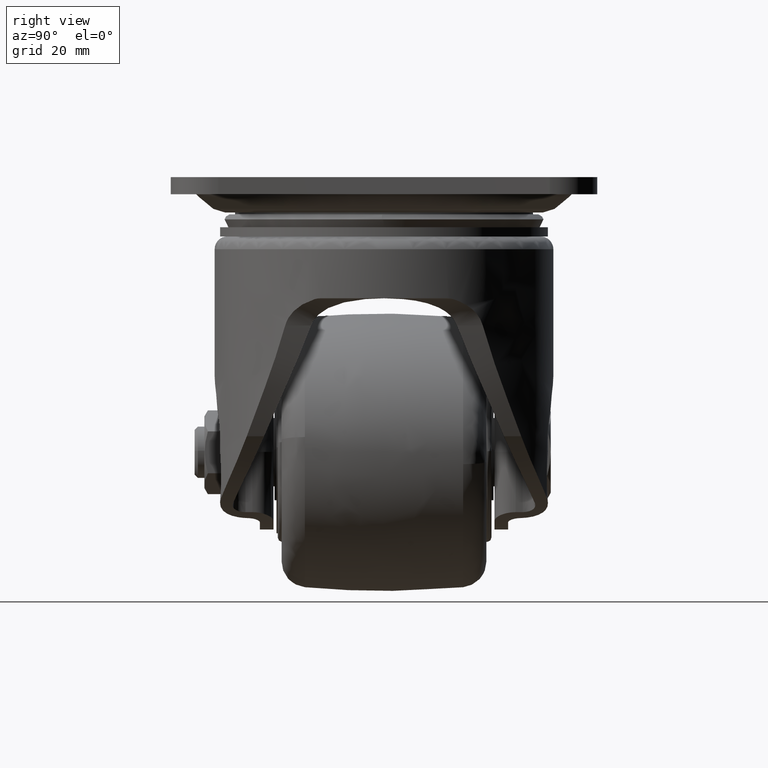
[diagram: clean part render]
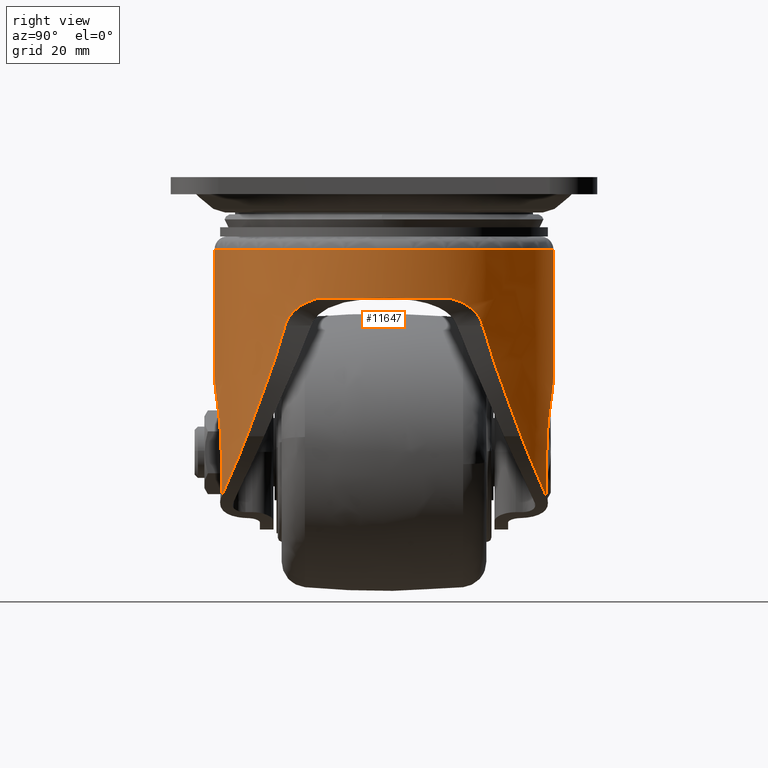
[diagram: same view with one face highlighted and labeled with its STEP entity id]
A machine part, right view. The second image highlights one B-rep face of the part: STEP entity #11647.
In plain terms, the highlighted face is a freeform B-spline surface patch.
Its self-contained STEP definition (entity closure, byte-faithful):
#7532=CARTESIAN_POINT('',(36.812221337535149,14.864217247434860,-28.399991999999902));
#7533=VERTEX_POINT('',#7532);
#7534=CARTESIAN_POINT('',(36.230004041705762,16.231811328207399,-28.586958777777699));
#7535=VERTEX_POINT('',#7534);
#7536=CARTESIAN_POINT('',(36.812221337535149,14.864217247434860,-28.399991999999902));
#7537=CARTESIAN_POINT('',(36.717984941552317,15.097601650309100,-28.399991999999902));
#7538=CARTESIAN_POINT('',(36.622156322688490,15.328530808583061,-28.412993017137421));
#7539=CARTESIAN_POINT('',(36.476396925567030,15.670756550695369,-28.456702601227541));
#7540=CARTESIAN_POINT('',(36.427476928232117,15.784131619117240,-28.475355394931540));
#7541=CARTESIAN_POINT('',(36.329094646031287,16.009272860782978,-28.522740774934469));
#7542=CARTESIAN_POINT('',(36.279629445634328,16.121044846056851,-28.551421769338170));
#7543=CARTESIAN_POINT('',(36.230004041705762,16.231811328207399,-28.586958777777699));
#7544=B_SPLINE_CURVE_WITH_KNOTS('',3,(#7536,#7537,#7538,#7539,#7540,#7541,#7542,#7543),.UNSPECIFIED.,.F.,.U.,(4,2,2,4),(0.0,0.500000000000000,0.750000000000000,1.0),.UNSPECIFIED.);
#7545=EDGE_CURVE('',#7533,#7535,#7544,.T.);
#7876=CARTESIAN_POINT('',(36.230004041705762,-16.231593665728699,-28.586958777777699));
#7877=VERTEX_POINT('',#7876);
#7878=CARTESIAN_POINT('',(36.812221337535149,-14.863999584956140,-28.399991999999902));
#7879=VERTEX_POINT('',#7878);
#7880=CARTESIAN_POINT('',(36.230004041705762,-16.231593665728699,-28.586958777777699));
#7881=CARTESIAN_POINT('',(36.279629445634342,-16.120827183578150,-28.551421769338170));
#7882=CARTESIAN_POINT('',(36.329094646031280,-16.009055198304281,-28.522740774934480));
#7883=CARTESIAN_POINT('',(36.427476928232110,-15.783913956638539,-28.475355394931551));
#7884=CARTESIAN_POINT('',(36.476396925567023,-15.670538888216660,-28.456702601227541));
#7885=CARTESIAN_POINT('',(36.622156322688483,-15.328313146104350,-28.412993017137421));
#7886=CARTESIAN_POINT('',(36.717984941552317,-15.097383987830380,-28.399991999999909));
#7887=CARTESIAN_POINT('',(36.812221337535149,-14.863999584956140,-28.399991999999902));
#7888=B_SPLINE_CURVE_WITH_KNOTS('',3,(#7880,#7881,#7882,#7883,#7884,#7885,#7886,#7887),.UNSPECIFIED.,.F.,.U.,(4,2,2,4),(0.0,0.250000000000002,0.500000000000003,1.0),.UNSPECIFIED.);
#7889=EDGE_CURVE('',#7877,#7879,#7888,.T.);
#7961=CARTESIAN_POINT('',(0.014432358037103,-39.699779714185247,-16.899992999999998));
#7962=VERTEX_POINT('',#7961);
#8028=CARTESIAN_POINT('',(0.014432358037102,-39.699779714185247,-46.660197593636099));
#8029=VERTEX_POINT('',#8028);
#8035=CARTESIAN_POINT('',(0.014432358037103,-39.699779714185247,-16.899992999999998));
#8036=CARTESIAN_POINT('',(0.014432358037102,-39.699779714185247,-46.660197593636099));
#8037=QUASI_UNIFORM_CURVE('',1,(#8035,#8036),.UNSPECIFIED.,.F.,.U.);
#8038=EDGE_CURVE('',#7962,#8029,#8037,.T.);
#8101=CARTESIAN_POINT('',(0.029899459813586,39.699988740810802,-16.899992999999998));
#8102=VERTEX_POINT('',#8101);
#8168=CARTESIAN_POINT('',(0.029899459813594,39.699988740810802,-46.669548904249602));
#8169=VERTEX_POINT('',#8168);
#8177=CARTESIAN_POINT('',(0.029899459813594,39.699988740810802,-46.669548904249602));
#8178=CARTESIAN_POINT('',(0.029899459813586,39.699988740810802,-16.899992999999998));
#8179=QUASI_UNIFORM_CURVE('',1,(#8177,#8178),.UNSPECIFIED.,.F.,.U.);
#8180=EDGE_CURVE('',#8169,#8102,#8179,.T.);
#8256=CARTESIAN_POINT('',(0.029899459813586,39.699988740810802,-16.899992999999998));
#8257=CARTESIAN_POINT('',(1.328603247773559,39.699024466573889,-16.899993000000030));
#8258=CARTESIAN_POINT('',(4.250592468248938,39.553328368664253,-16.899992999999998));
#8259=CARTESIAN_POINT('',(8.344904018143806,38.891641135257373,-16.899992999999998));
#8260=CARTESIAN_POINT('',(12.263104461386870,37.817447350266093,-16.899992999999998));
#8261=CARTESIAN_POINT('',(15.761802529001930,36.502193044974483,-16.899993000000109));
#8262=CARTESIAN_POINT('',(19.996605930774301,34.432437909994583,-16.899992999999551));
#8263=CARTESIAN_POINT('',(24.338045188671028,31.547317279321721,-16.899993000000450));
#8264=CARTESIAN_POINT('',(28.808271298500369,27.516654919936819,-16.899992999999260));
#8265=CARTESIAN_POINT('',(32.085225418358917,23.569753452228781,-16.899993000000588));
#8266=CARTESIAN_POINT('',(35.039833651900238,18.899711146516911,-16.899993000000070));
#8267=CARTESIAN_POINT('',(37.306170963026027,14.026693312928391,-16.899992999999689));
#8268=CARTESIAN_POINT('',(38.800644467887480,8.867030547143902,-16.899993000000130));
#8269=CARTESIAN_POINT('',(39.574008177097049,4.052702614155424,-16.899993000000588));
#8270=CARTESIAN_POINT('',(39.776613898792512,-0.089751000598998,-16.899992999997320));
#8271=CARTESIAN_POINT('',(39.524974588677992,-4.388894244820029,-16.899993000001469));
#8272=CARTESIAN_POINT('',(38.891649076851763,-8.321590269637326,-16.899992999999519));
#8273=CARTESIAN_POINT('',(37.789148969682870,-12.401146472073410,-16.899993000000300));
#8274=CARTESIAN_POINT('',(36.355310827259210,-16.117535268481820,-16.899992999999860));
#8275=CARTESIAN_POINT('',(34.443891642721837,-19.885786079524120,-16.899992999998791));
#8276=CARTESIAN_POINT('',(32.237423962513162,-23.300283719011130,-16.899993000003668));
#8277=CARTESIAN_POINT('',(29.014072531098780,-27.278114075724190,-16.899992999998290));
#8278=CARTESIAN_POINT('',(25.097503426744709,-30.962164616445548,-16.899993000000670));
#8279=CARTESIAN_POINT('',(20.603201210979961,-34.046375891084907,-16.899992999999810));
#8280=CARTESIAN_POINT('',(16.137648118845210,-36.381784939070677,-16.899993000000080));
#8281=CARTESIAN_POINT('',(11.033699487887491,-38.298361061529370,-16.899992999999981));
#8282=CARTESIAN_POINT('',(5.452689937896340,-39.463608266485537,-16.899992999999981));
#8283=CARTESIAN_POINT('',(1.637800858310207,-39.699209445649103,-16.899993000000020));
#8284=CARTESIAN_POINT('',(0.014432358037103,-39.699779714185247,-16.899992999999998));
#8285=B_SPLINE_CURVE_WITH_KNOTS('',3,(#8256,#8257,#8258,#8259,#8260,#8261,#8262,#8263,#8264,#8265,#8266,#8267,#8268,#8269,#8270,#8271,#8272,#8273,#8274,#8275,#8276,#8277,#8278,#8279,#8280,#8281,#8282,#8283,#8284),.UNSPECIFIED.,.F.,.U.,(4,1,1,1,1,1,1,1,1,1,1,1,1,1,1,1,1,1,1,1,1,1,1,1,1,1,4),(0.000000015939463,3.896119652257980,8.766300005151635,12.418964177532020,16.071571383792939,19.967735331932030,26.542513828043280,31.656211143915879,37.987471697872493,41.883631573560912,48.214843316537710,54.059124758264353,57.955282738984451,62.825373665175327,66.478002339780744,70.861131748792459,74.757297921822811,79.140481355885953,82.793147153585466,87.419828953139699,91.315973595952585,98.134244317755872,103.491466922858290,107.631148151113000,113.231849575292500,119.806628821982700,124.676750065452200),.UNSPECIFIED.);
#8286=EDGE_CURVE('',#8102,#7962,#8285,.T.);
#10392=CARTESIAN_POINT('',(7.570128583227100,38.971566489960551,-53.722177817459503));
#10393=VERTEX_POINT('',#10392);
#10394=CARTESIAN_POINT('',(7.570128583227100,38.971566489960551,-53.722177817459503));
#10395=CARTESIAN_POINT('',(7.327018191296419,39.018790202836549,-53.361458173089090));
#10396=CARTESIAN_POINT('',(7.073061908013993,39.065761835169432,-53.008532965466252));
#10397=CARTESIAN_POINT('',(6.676283658794670,39.134832772528362,-52.490396484032487));
#10398=CARTESIAN_POINT('',(6.541595972023673,39.157587091688868,-52.319846759190597));
#10399=CARTESIAN_POINT('',(6.267935954013404,39.202322550048137,-51.983527336883803));
#10400=CARTESIAN_POINT('',(6.128892704571050,39.224316105288501,-51.817664772395830));
#10401=CARTESIAN_POINT('',(5.422862952009679,39.332034390633673,-50.999528644379893));
#10402=CARTESIAN_POINT('',(4.823560509100729,39.410996504553012,-50.380651957911880));
#10403=CARTESIAN_POINT('',(3.560316729248953,39.545133144936933,-49.208560798884768));
#10404=CARTESIAN_POINT('',(2.896353931877570,39.600332764739520,-48.655371787950983));
#10405=CARTESIAN_POINT('',(2.026950753373017,39.648603848514199,-48.003270465334161));
#10406=CARTESIAN_POINT('',(1.851091642083799,39.657220436428432,-47.874825644990793));
#10407=CARTESIAN_POINT('',(1.495417405493278,39.672224579169431,-47.621868835852098));
#10408=CARTESIAN_POINT('',(1.315630716560883,39.678608173726609,-47.497384402997241));
#10409=CARTESIAN_POINT('',(0.772236158157479,39.694143041637133,-47.131055541292859));
#10410=CARTESIAN_POINT('',(0.403988828175167,39.699707000159201,-46.895891282613917));
#10411=CARTESIAN_POINT('',(0.029899459813620,39.699988740810852,-46.669548904249567));
#10412=B_SPLINE_CURVE_WITH_KNOTS('',3,(#10394,#10395,#10396,#10397,#10398,#10399,#10400,#10401,#10402,#10403,#10404,#10405,#10406,#10407,#10408,#10409,#10410,#10411),.UNSPECIFIED.,.F.,.U.,(4,2,2,2,2,2,2,2,4),(0.0,0.125000000000001,0.187500000000001,0.250000000000001,0.500000000000001,0.750000000000001,0.812500000000001,0.875000000000000,1.0),.UNSPECIFIED.);
#10413=EDGE_CURVE('',#10393,#8169,#10412,.T.);
#10513=CARTESIAN_POINT('',(10.900836551437180,38.174093706949449,-64.399991999999997));
#10514=VERTEX_POINT('',#10513);
#10532=CARTESIAN_POINT('',(10.900836551437180,38.174093706949449,-64.399991999999997));
#10533=CARTESIAN_POINT('',(10.900836551437180,38.174093706949463,-63.441175281140062));
#10534=CARTESIAN_POINT('',(10.826445746006501,38.195563710830029,-62.490746516462643));
#10535=CARTESIAN_POINT('',(10.642508470874750,38.246936557772152,-61.312915470499163));
#10536=CARTESIAN_POINT('',(10.601151992713620,38.258430886605510,-61.077861553999703));
#10537=CARTESIAN_POINT('',(10.532238478635859,38.277437359421619,-60.726049865427143));
#10538=CARTESIAN_POINT('',(10.508095402537659,38.284073802132092,-60.608793311225753));
#10539=CARTESIAN_POINT('',(10.457642521532660,38.297886257262483,-60.375148151015949));
#10540=CARTESIAN_POINT('',(10.431346301682259,38.305058594874247,-60.258809262875509));
#10541=CARTESIAN_POINT('',(10.294590850771250,38.342195498467163,-59.679495899551377));
#10542=CARTESIAN_POINT('',(10.168331310684300,38.375987217562077,-59.223655088247448));
#10543=CARTESIAN_POINT('',(9.741273310738196,38.487451323439473,-57.877769800443758));
#10544=CARTESIAN_POINT('',(9.392392093539741,38.575248235351147,-57.009282013767681));
#10545=CARTESIAN_POINT('',(8.572668828859436,38.765657433524723,-55.325898459057747));
#10546=CARTESIAN_POINT('',(8.101779722598829,38.868294307490302,-54.511025255861000));
#10547=CARTESIAN_POINT('',(7.570128583227100,38.971566489960551,-53.722177817459503));
#10548=B_SPLINE_CURVE_WITH_KNOTS('',3,(#10532,#10533,#10534,#10535,#10536,#10537,#10538,#10539,#10540,#10541,#10542,#10543,#10544,#10545,#10546,#10547),.UNSPECIFIED.,.F.,.U.,(4,2,2,2,2,2,2,4),(0.0,0.250000000000002,0.312500000000002,0.343750000000002,0.375000000000001,0.500000000000000,0.750000000000000,1.0),.UNSPECIFIED.);
#10549=EDGE_CURVE('',#10514,#10393,#10548,.T.);
#10570=CARTESIAN_POINT('',(10.900836551437180,38.174093706949449,-75.132199851743593));
#10571=VERTEX_POINT('',#10570);
#10623=CARTESIAN_POINT('',(10.900836551437180,38.174093706949449,-75.132199851743593));
#10624=CARTESIAN_POINT('',(10.900836551437180,38.174093706949449,-64.399991999999997));
#10625=QUASI_UNIFORM_CURVE('',1,(#10623,#10624),.UNSPECIFIED.,.F.,.U.);
#10626=EDGE_CURVE('',#10571,#10514,#10625,.T.);
#10645=CARTESIAN_POINT('',(10.900819474103541,-38.173880921013399,-64.399991999999997));
#10646=VERTEX_POINT('',#10645);
#10669=CARTESIAN_POINT('',(10.900819474103541,-38.173880921013399,-75.132212078413403));
#10670=VERTEX_POINT('',#10669);
#10714=CARTESIAN_POINT('',(10.900819474103541,-38.173880921013399,-64.399991999999997));
#10715=CARTESIAN_POINT('',(10.900819474103541,-38.173880921013399,-75.132212078413403));
#10716=QUASI_UNIFORM_CURVE('',1,(#10714,#10715),.UNSPECIFIED.,.F.,.U.);
#10717=EDGE_CURVE('',#10646,#10670,#10716,.T.);
#10810=CARTESIAN_POINT('',(7.568768045862949,-38.971613084529501,-53.720159343986701));
#10811=VERTEX_POINT('',#10810);
#10828=CARTESIAN_POINT('',(7.568768045862949,-38.971613084529501,-53.720159343986701));
#10829=CARTESIAN_POINT('',(8.099258448875171,-38.868585591424797,-54.507089902480708));
#10830=CARTESIAN_POINT('',(8.572575531461757,-38.765503714482257,-55.324774095929207));
#10831=CARTESIAN_POINT('',(9.089726537938438,-38.645324350539241,-56.387984762914058));
#10832=CARTESIAN_POINT('',(9.189418133657940,-38.621720219494897,-56.602689387133097));
#10833=CARTESIAN_POINT('',(9.333246158367393,-38.587121005472497,-56.927913497515220));
#10834=CARTESIAN_POINT('',(9.380237063312537,-38.575722420109457,-57.036849507502161));
#10835=CARTESIAN_POINT('',(9.472295790894854,-38.553220681868559,-57.255791117756559));
#10836=CARTESIAN_POINT('',(9.517366183623498,-38.542116724336992,-57.365809342345187));
#10837=CARTESIAN_POINT('',(9.737142763291558,-38.487580450237132,-57.916758901133903));
#10838=CARTESIAN_POINT('',(9.895761322683635,-38.446954359025717,-58.361712211163621));
#10839=CARTESIAN_POINT('',(10.320378131964880,-38.335993725280510,-59.709184973731972));
#10840=CARTESIAN_POINT('',(10.535379406259439,-38.276644760409113,-60.624265093050013));
#10841=CARTESIAN_POINT('',(10.753169204464150,-38.215809218136847,-62.023023838180038));
#10842=CARTESIAN_POINT('',(10.808256173407390,-38.200210982432907,-62.493645511011252));
#10843=CARTESIAN_POINT('',(10.863702889642830,-38.184465115301528,-63.206384321798467));
#10844=CARTESIAN_POINT('',(10.877635435837201,-38.180494871302201,-63.445141521597151));
#10845=CARTESIAN_POINT('',(10.896178695201730,-38.175207036579522,-63.922326329772972));
#10846=CARTESIAN_POINT('',(10.900819474103541,-38.173880921013399,-64.161078890076695));
#10847=CARTESIAN_POINT('',(10.900819474103541,-38.173880921013399,-64.399991999999997));
#10848=B_SPLINE_CURVE_WITH_KNOTS('',3,(#10828,#10829,#10830,#10831,#10832,#10833,#10834,#10835,#10836,#10837,#10838,#10839,#10840,#10841,#10842,#10843,#10844,#10845,#10846,#10847),.UNSPECIFIED.,.F.,.U.,(4,2,2,2,2,2,2,2,2,4),(0.0,0.249999999999997,0.312499999999997,0.343749999999997,0.374999999999998,0.499999999999998,0.749999999999999,0.875000000000000,0.937500000000000,1.0),.UNSPECIFIED.);
#10849=EDGE_CURVE('',#10811,#10646,#10848,.T.);
#10932=CARTESIAN_POINT('',(0.014432358037130,-39.699779714185247,-46.660197593636063));
#10933=CARTESIAN_POINT('',(0.389230465393449,-39.699643461397798,-46.886627551099757));
#10934=CARTESIAN_POINT('',(0.758175207920059,-39.694202677640618,-47.121905105076891));
#10935=CARTESIAN_POINT('',(1.302598463432173,-39.678822042772502,-47.488443278037721));
#10936=CARTESIAN_POINT('',(1.482723533985414,-39.672484954889633,-47.613002569564323));
#10937=CARTESIAN_POINT('',(1.839107098866375,-39.657561951048592,-47.866151355727759));
#10938=CARTESIAN_POINT('',(2.015315183361488,-39.648980819584352,-47.994697977115649));
#10939=CARTESIAN_POINT('',(2.886435203116937,-39.600863334532797,-48.647337114863653));
#10940=CARTESIAN_POINT('',(3.551682299056767,-39.545711047697061,-49.201048045796270));
#10941=CARTESIAN_POINT('',(4.817319227108229,-39.411561426627770,-50.374368222167973));
#10942=CARTESIAN_POINT('',(5.417730611177781,-39.332538810983401,-50.993951885147901));
#10943=CARTESIAN_POINT('',(6.125030045036385,-39.224702727312447,-51.813097833399091));
#10944=CARTESIAN_POINT('',(6.264321366740370,-39.202683504459479,-51.979168709787103));
#10945=CARTESIAN_POINT('',(6.538465456557779,-39.157893142496832,-52.315917902334803));
#10946=CARTESIAN_POINT('',(6.673387475070329,-39.135109885535158,-52.486686844723693));
#10947=CARTESIAN_POINT('',(7.070862755868349,-39.065945500625368,-53.005518606743877));
#10948=CARTESIAN_POINT('',(7.325253840923921,-39.018906415243499,-53.358929869889138));
#10949=CARTESIAN_POINT('',(7.568768045862960,-38.971613084529501,-53.720159343986701));
#10950=B_SPLINE_CURVE_WITH_KNOTS('',3,(#10932,#10933,#10934,#10935,#10936,#10937,#10938,#10939,#10940,#10941,#10942,#10943,#10944,#10945,#10946,#10947,#10948,#10949),.UNSPECIFIED.,.F.,.U.,(4,2,2,2,2,2,2,2,4),(0.0,0.125000000000001,0.187500000000001,0.250000000000000,0.500000000000001,0.750000000000001,0.812500000000001,0.875000000000001,1.0),.UNSPECIFIED.);
#10951=EDGE_CURVE('',#8029,#10811,#10950,.T.);
#11313=CARTESIAN_POINT('',(36.812221337535178,14.864217247434880,-28.399991999999902));
#11314=CARTESIAN_POINT('',(42.814079171176246,0.000108831239375,-28.399991999999905));
#11315=CARTESIAN_POINT('',(36.812221337535178,-14.863999584956151,-28.399991999999902));
#11323=(BOUNDED_CURVE()B_SPLINE_CURVE(2,(#11313,#11314,#11315),.UNSPECIFIED.,.F.,.U.)CURVE()GEOMETRIC_REPRESENTATION_ITEM()QUASI_UNIFORM_CURVE()RATIONAL_B_SPLINE_CURVE((1.0,0.927262525255853,1.0))REPRESENTATION_ITEM(''));
#11324=EDGE_CURVE('',#7533,#7879,#11323,.T.);
#11351=CARTESIAN_POINT('',(23.267830040876699,-32.166480108232747,-60.744106031722097));
#11352=VERTEX_POINT('',#11351);
#11358=CARTESIAN_POINT('',(10.900819474103541,-38.173880921013421,-75.132212078413389));
#11359=CARTESIAN_POINT('',(11.568338257588559,-37.983266793394911,-74.654296299228704));
#11360=CARTESIAN_POINT('',(12.215353997814940,-37.779603022141423,-74.160024276957444));
#11361=CARTESIAN_POINT('',(13.470868114798950,-37.350355868013132,-73.139641986485458));
#11362=CARTESIAN_POINT('',(14.079361810840981,-37.124764904899848,-72.613529953850389));
#11363=CARTESIAN_POINT('',(15.849747850165279,-36.420766121859700,-70.987885586900120));
#11364=CARTESIAN_POINT('',(16.956796845596610,-35.915117929197763,-69.841320552727481));
#11365=CARTESIAN_POINT('',(18.253855224697880,-35.255569049839423,-68.327038172278264));
#11366=CARTESIAN_POINT('',(18.508909038320780,-35.122285362813429,-68.020106030504721));
#11367=CARTESIAN_POINT('',(19.010340068562058,-34.853431278610159,-67.397934901006025));
#11368=CARTESIAN_POINT('',(19.255755257204719,-34.718376441528022,-67.083886394325773));
#11369=CARTESIAN_POINT('',(19.976068074549971,-34.312307995437138,-66.133327457859338));
#11370=CARTESIAN_POINT('',(20.435243889482301,-34.040285320018292,-65.488183379373851));
#11371=CARTESIAN_POINT('',(21.313091896983771,-33.497648415870863,-64.174377759177816));
#11372=CARTESIAN_POINT('',(21.731762466261500,-33.227028664086127,-63.505717390139132));
#11373=CARTESIAN_POINT('',(22.529469995074368,-32.691406088756636,-62.143777430854193));
#11374=CARTESIAN_POINT('',(22.908507201696960,-32.426397719653266,-61.450500083144860));
#11375=CARTESIAN_POINT('',(23.267830429765478,-32.166479826928523,-60.744106359037339));
#11376=B_SPLINE_CURVE_WITH_KNOTS('',3,(#11358,#11359,#11360,#11361,#11362,#11363,#11364,#11365,#11366,#11367,#11368,#11369,#11370,#11371,#11372,#11373,#11374,#11375),.UNSPECIFIED.,.F.,.U.,(4,2,2,2,2,2,2,2,4),(0.0,0.125000000000000,0.250000000000000,0.499999999999999,0.562499999999999,0.625000000000000,0.750000000000000,0.875000000000000,1.0),.UNSPECIFIED.);
#11377=EDGE_CURVE('',#10670,#11352,#11376,.T.);
#11409=CARTESIAN_POINT('',(23.267830040876699,32.166697770711451,-60.744106031722097));
#11410=VERTEX_POINT('',#11409);
#11411=CARTESIAN_POINT('',(23.267830040876699,32.166697770711451,-60.744106031722097));
#11412=CARTESIAN_POINT('',(22.908169296100379,32.426859807573173,-61.451164372376439));
#11413=CARTESIAN_POINT('',(22.528555560124509,32.692269167281736,-62.145476848471809));
#11414=CARTESIAN_POINT('',(21.729097778281371,33.229003979965057,-63.510128051355942));
#11415=CARTESIAN_POINT('',(21.309253844740979,33.500334866749483,-64.180464829002872));
#11416=CARTESIAN_POINT('',(20.428328970176310,34.044679901178448,-65.498185218022897));
#11417=CARTESIAN_POINT('',(19.967250072506051,34.317699584053123,-66.145567888422107));
#11418=CARTESIAN_POINT('',(19.243416469165261,34.725444961178141,-67.099856751958612));
#11419=CARTESIAN_POINT('',(18.996388415264452,34.861258171969887,-67.415599649990597));
#11420=CARTESIAN_POINT('',(18.494170706083469,35.130269036888222,-68.038018753340765));
#11421=CARTESIAN_POINT('',(18.238796127085259,35.263581268465487,-68.344969013129770));
#11422=CARTESIAN_POINT('',(16.940541080248380,35.923032510544679,-69.858846721683136));
#11423=CARTESIAN_POINT('',(15.833822466496709,36.427817955100409,-71.003507679460526));
#11424=CARTESIAN_POINT('',(14.066864201843501,37.129697195699542,-72.624497707211745));
#11425=CARTESIAN_POINT('',(13.460004610822820,37.354446992357403,-73.148757607571369));
#11426=CARTESIAN_POINT('',(12.208960985523710,37.781844832017462,-74.164929402004191));
#11427=CARTESIAN_POINT('',(11.564780888175990,37.984499963524328,-74.656842700939308));
#11428=CARTESIAN_POINT('',(10.900836551437200,38.174093706949492,-75.132199851743593));
#11429=B_SPLINE_CURVE_WITH_KNOTS('',3,(#11411,#11412,#11413,#11414,#11415,#11416,#11417,#11418,#11419,#11420,#11421,#11422,#11423,#11424,#11425,#11426,#11427,#11428),.UNSPECIFIED.,.F.,.U.,(4,2,2,2,2,2,2,2,4),(0.0,0.125000000000000,0.250000000000000,0.375000000000000,0.437500000000001,0.500000000000001,0.750000000000001,0.875000000000000,1.0),.UNSPECIFIED.);
#11430=EDGE_CURVE('',#11410,#10571,#11429,.T.);
#11456=CARTESIAN_POINT('',(32.241656680774199,-23.163589778680048,-34.779846532135949));
#11457=VERTEX_POINT('',#11456);
#11463=CARTESIAN_POINT('',(23.267830040876721,-32.166480108232747,-60.744106031722097));
#11464=CARTESIAN_POINT('',(24.303791239244699,-31.417113455215031,-58.707509145340246));
#11465=CARTESIAN_POINT('',(25.267697773628480,-30.643601378852640,-56.640261195297583));
#11466=CARTESIAN_POINT('',(26.608435174302400,-29.468952542324949,-53.487380794628621));
#11467=CARTESIAN_POINT('',(27.037799398523841,-29.075032127496780,-52.427728386650102));
#11468=CARTESIAN_POINT('',(27.655639995985091,-28.483714648813990,-50.824183638299637));
#11469=CARTESIAN_POINT('',(27.857217460732770,-28.286539566478531,-50.287322158655847));
#11470=CARTESIAN_POINT('',(28.251630966901530,-27.892621224111640,-49.208705173328802));
#11471=CARTESIAN_POINT('',(28.444555573215251,-27.695780789421239,-48.666676055247400));
#11472=CARTESIAN_POINT('',(29.384720833334949,-26.716898814945321,-45.951306521628020));
#11473=CARTESIAN_POINT('',(30.060692652364200,-25.948542418798532,-43.757427693246967));
#11474=CARTESIAN_POINT('',(30.962782694207000,-24.851682714832041,-40.425119459451153));
#11475=CARTESIAN_POINT('',(31.244799220626810,-24.495425430649789,-39.307402937883992));
#11476=CARTESIAN_POINT('',(31.771403704834839,-23.808431311681488,-37.056104594438288));
#11477=CARTESIAN_POINT('',(32.015993410886438,-23.477691500956610,-35.922524026990097));
#11478=CARTESIAN_POINT('',(32.241656612113843,-23.163589874248750,-34.779846489001820));
#11479=B_SPLINE_CURVE_WITH_KNOTS('',3,(#11463,#11464,#11465,#11466,#11467,#11468,#11469,#11470,#11471,#11472,#11473,#11474,#11475,#11476,#11477,#11478),.UNSPECIFIED.,.F.,.U.,(4,2,2,2,2,2,2,4),(0.0,0.250000000000000,0.374999999999999,0.437499999999999,0.499999999999999,0.750000000000000,0.875000000000000,1.0),.UNSPECIFIED.);
#11480=EDGE_CURVE('',#11352,#11457,#11479,.T.);
#11499=CARTESIAN_POINT('',(32.241656680774199,23.163807441158749,-34.779846532135949));
#11500=VERTEX_POINT('',#11499);
#11508=CARTESIAN_POINT('',(32.241656680774199,23.163807441158749,-34.779846532135949));
#11509=CARTESIAN_POINT('',(32.013669305966182,23.481144095619040,-35.934292461763519));
#11510=CARTESIAN_POINT('',(31.766969631457009,23.814611976940661,-37.076409031100873));
#11511=CARTESIAN_POINT('',(31.237048043277909,24.505572491094419,-39.339160552449400));
#11512=CARTESIAN_POINT('',(30.953823217287479,24.863071145327641,-40.459792370142601));
#11513=CARTESIAN_POINT('',(30.351333822158669,25.595081033114219,-42.682175880115487));
#11514=CARTESIAN_POINT('',(30.032067303118261,25.969599149996021,-43.783924486584453));
#11515=CARTESIAN_POINT('',(29.357637287562561,26.729654783367639,-45.970667841005117));
#11516=CARTESIAN_POINT('',(29.002472602459459,27.115199004339019,-47.055659839476313));
#11517=CARTESIAN_POINT('',(27.882907120187550,28.280588719276210,-50.288114241865962));
#11518=CARTESIAN_POINT('',(27.064562029279831,29.068987246412721,-52.413171507953081));
#11519=CARTESIAN_POINT('',(25.279564692412389,30.633976022878809,-56.613916958881617));
#11520=CARTESIAN_POINT('',(24.312924252934518,31.410724715917802,-58.689554546969887));
#11521=CARTESIAN_POINT('',(23.267830040876710,32.166697770711473,-60.744106031722097));
#11522=B_SPLINE_CURVE_WITH_KNOTS('',3,(#11508,#11509,#11510,#11511,#11512,#11513,#11514,#11515,#11516,#11517,#11518,#11519,#11520,#11521),.UNSPECIFIED.,.F.,.U.,(4,2,2,2,2,2,4),(0.0,0.125000000000000,0.250000000000000,0.375000000000000,0.500000000000000,0.750000000000000,1.0),.UNSPECIFIED.);
#11523=EDGE_CURVE('',#11500,#11410,#11522,.T.);
#11544=CARTESIAN_POINT('',(36.230004041705762,-16.231593665728710,-28.586958777777639));
#11545=CARTESIAN_POINT('',(36.144459515859772,-16.422533495837360,-28.648217655213081));
#11546=CARTESIAN_POINT('',(36.057651946836337,-16.612246477560319,-28.712419674657632));
#11547=CARTESIAN_POINT('',(35.881623208851437,-16.989115068721670,-28.847312508362439));
#11548=CARTESIAN_POINT('',(35.792390712618818,-17.176277739524540,-28.918023421167451));
#11549=CARTESIAN_POINT('',(35.523112972685162,-17.730044087048871,-29.139341445741980));
#11550=CARTESIAN_POINT('',(35.340909340986677,-18.090165680078069,-29.299523540697770));
#11551=CARTESIAN_POINT('',(34.973340836282681,-18.790935197549029,-29.649443644655591));
#11552=CARTESIAN_POINT('',(34.787968270892790,-19.131591690823790,-29.839160366448802));
#11553=CARTESIAN_POINT('',(34.416767612476413,-19.791576503550850,-30.253705852641801));
#11554=CARTESIAN_POINT('',(34.230924807209931,-20.110921996600940,-30.478492595962130));
#11555=CARTESIAN_POINT('',(33.954465618831449,-20.571904370619770,-30.847817579440431));
#11556=CARTESIAN_POINT('',(33.862704377533987,-20.722551019666390,-30.976303962166170));
#11557=CARTESIAN_POINT('',(33.726078629203812,-20.943636874101468,-31.178095713634001));
#11558=CARTESIAN_POINT('',(33.680663474196422,-21.016586390750302,-31.246940060498130));
#11559=CARTESIAN_POINT('',(33.590444847587293,-21.160481544675690,-31.387556757577940));
#11560=CARTESIAN_POINT('',(33.545805246227019,-21.231166981101410,-31.459070710407321));
#11561=CARTESIAN_POINT('',(33.325178872918222,-21.578167900377331,-31.822869672994191));
#11562=CARTESIAN_POINT('',(33.156833614583988,-21.835305527326430,-32.133727803353644));
#11563=CARTESIAN_POINT('',(32.921602153364418,-22.187035298943989,-32.634810216148793));
#11564=CARTESIAN_POINT('',(32.846086296122849,-22.298597126902202,-32.807658042364373));
#11565=CARTESIAN_POINT('',(32.737966589755601,-22.456760513620772,-33.076574255792082));
#11566=CARTESIAN_POINT('',(32.702702485419053,-22.508072111664990,-33.168058039522059));
#11567=CARTESIAN_POINT('',(32.634514494595642,-22.606824240506199,-33.353162399479118));
#11568=CARTESIAN_POINT('',(32.601618397638582,-22.654226327257678,-33.446683253630731));
#11569=CARTESIAN_POINT('',(32.443346661014473,-22.881317111040111,-33.919201231419073));
#11570=CARTESIAN_POINT('',(32.336497635882317,-23.031452763578340,-34.312844584023658));
#11571=CARTESIAN_POINT('',(32.249111843062359,-23.153210296389499,-34.742379126096992));
#11572=CARTESIAN_POINT('',(32.245359790140597,-23.158435445469269,-34.761094749866842));
#11573=CARTESIAN_POINT('',(32.241656431443772,-23.163590229541771,-34.779846358963773));
#11574=B_SPLINE_CURVE_WITH_KNOTS('',3,(#11544,#11545,#11546,#11547,#11548,#11549,#11550,#11551,#11552,#11553,#11554,#11555,#11556,#11557,#11558,#11559,#11560,#11561,#11562,#11563,#11564,#11565,#11566,#11567,#11568,#11569,#11570,#11571,#11572,#11573),.UNSPECIFIED.,.F.,.U.,(4,2,2,2,2,2,2,2,2,2,2,2,2,2,4),(0.0,0.007812500000000,0.015625000000000,0.031250000000001,0.046875000000002,0.062500000000002,0.070312500000002,0.074218750000003,0.078125000000003,0.093750000000003,0.101562500000004,0.105468750000004,0.109375000000004,0.125000000000006,0.125710405539689),.UNSPECIFIED.);
#11575=EDGE_CURVE('',#7877,#11457,#11574,.T.);
#11581=CARTESIAN_POINT('',(-1.250479328917696,-39.680083459877920,-15.444187523039661));
#11582=CARTESIAN_POINT('',(-1.250479328917696,-39.680083459877920,-76.624412692297739));
#11583=CARTESIAN_POINT('',(40.199990302894264,-40.986351208487456,-15.444187523039655));
#11584=CARTESIAN_POINT('',(40.199990302894264,-40.986351208487456,-76.624412692297753));
#11585=CARTESIAN_POINT('',(39.696970682707253,0.481645359836522,-15.444187523039661));
#11586=CARTESIAN_POINT('',(39.696970682707253,0.481645359836522,-76.624412692297739));
#11587=CARTESIAN_POINT('',(39.193951062520263,41.949641928160503,-15.444187523039655));
#11588=CARTESIAN_POINT('',(39.193951062520263,41.949641928160503,-76.624412692297753));
#11589=CARTESIAN_POINT('',(-2.212635753961094,39.638292465613752,-15.444187523039661));
#11590=CARTESIAN_POINT('',(-2.212635753961094,39.638292465613752,-76.624412692297739));
#11598=(BOUNDED_SURFACE()B_SPLINE_SURFACE(1,2,((#11581,#11583,#11585,#11587,#11589),(#11582,#11584,#11586,#11588,#11590)),.UNSPECIFIED.,.F.,.F.,.U.)B_SPLINE_SURFACE_WITH_KNOTS((2,2),(3,2,3),(0.0,61.180225169258080),(0.0,67.815664986991081,135.631329973982190),.UNSPECIFIED.)GEOMETRIC_REPRESENTATION_ITEM()RATIONAL_B_SPLINE_SURFACE(((1.0,0.691513055782269,1.0,0.691513055782269,1.0),(1.0,0.691513055782269,1.0,0.691513055782269,1.0)))REPRESENTATION_ITEM('')SURFACE());
#11599=ORIENTED_EDGE('',*,*,#10413,.T.);
#11600=ORIENTED_EDGE('',*,*,#8180,.T.);
#11601=ORIENTED_EDGE('',*,*,#8286,.T.);
#11602=ORIENTED_EDGE('',*,*,#8038,.T.);
#11603=ORIENTED_EDGE('',*,*,#10951,.T.);
#11604=ORIENTED_EDGE('',*,*,#10849,.T.);
#11605=ORIENTED_EDGE('',*,*,#10717,.T.);
#11606=ORIENTED_EDGE('',*,*,#11377,.T.);
#11607=ORIENTED_EDGE('',*,*,#11480,.T.);
#11608=ORIENTED_EDGE('',*,*,#11575,.F.);
#11609=ORIENTED_EDGE('',*,*,#7889,.T.);
#11610=ORIENTED_EDGE('',*,*,#11324,.F.);
#11611=ORIENTED_EDGE('',*,*,#7545,.T.);
#11612=CARTESIAN_POINT('',(32.241656680774199,23.163807441158749,-34.779846532135949));
#11613=CARTESIAN_POINT('',(32.243631953240360,23.161058052073159,-34.769844797175161));
#11614=CARTESIAN_POINT('',(32.245621444877223,23.158288125985379,-34.759850868585261));
#11615=CARTESIAN_POINT('',(32.331488756169563,23.038704002650110,-34.331936075066402));
#11616=CARTESIAN_POINT('',(32.438710843606387,22.888097042711308,-33.935125349026322));
#11617=CARTESIAN_POINT('',(32.627863625084572,22.616828879974349,-33.367348952175043));
#11618=CARTESIAN_POINT('',(32.695664693833429,22.518794184799809,-33.182694373311563));
#11619=CARTESIAN_POINT('',(32.839915698486578,22.307901566974959,-32.822173856513530));
#11620=CARTESIAN_POINT('',(32.915376318766192,22.196485611677609,-32.648756157919657));
#11621=CARTESIAN_POINT('',(33.150042961464493,21.845820922115770,-32.146905965977929));
#11622=CARTESIAN_POINT('',(33.317480312803212,21.590224164336458,-31.836756549103580));
#11623=CARTESIAN_POINT('',(33.579953523222912,21.177800728844161,-31.402211974672589));
#11624=CARTESIAN_POINT('',(33.669348894898349,21.035464418553339,-31.262506993853890));
#11625=CARTESIAN_POINT('',(33.851252640561214,20.741466895648539,-30.992667410264779));
#11626=CARTESIAN_POINT('',(33.943993987348748,20.589406979489400,-30.862250404094841));
#11627=CARTESIAN_POINT('',(34.222662595942509,20.125242187587510,-30.488709076156400));
#11628=CARTESIAN_POINT('',(34.409854681697418,19.803853958154971,-30.261791081764411));
#11629=CARTESIAN_POINT('',(34.783469048948007,19.140033104554639,-29.843830857285919));
#11630=CARTESIAN_POINT('',(34.969907068219477,18.797582133896942,-29.652835391051021));
#11631=CARTESIAN_POINT('',(35.339325779153363,18.093518029035589,-29.300909879521431));
#11632=CARTESIAN_POINT('',(35.522314593177512,17.731895866062249,-29.140003204106929));
#11633=CARTESIAN_POINT('',(35.792576016489477,17.176118192821001,-28.917868337027450));
#11634=CARTESIAN_POINT('',(35.881971398291007,16.988596051786988,-28.847040406632459));
#11635=CARTESIAN_POINT('',(36.057905153381483,16.611913231130099,-28.712230937851810));
#11636=CARTESIAN_POINT('',(36.144609744182830,16.422415840886970,-28.648110075933911));
#11637=CARTESIAN_POINT('',(36.230004041705762,16.231811328207389,-28.586958777777632));
#11638=B_SPLINE_CURVE_WITH_KNOTS('',3,(#11612,#11613,#11614,#11615,#11616,#11617,#11618,#11619,#11620,#11621,#11622,#11623,#11624,#11625,#11626,#11627,#11628,#11629,#11630,#11631,#11632,#11633,#11634,#11635,#11636,#11637),.UNSPECIFIED.,.F.,.U.,(4,2,2,2,2,2,2,2,2,2,2,2,4),(0.874626677587856,0.875000000000015,0.890625000000014,0.898437500000013,0.906250000000012,0.921875000000010,0.929687500000009,0.937500000000008,0.953125000000006,0.968750000000004,0.984375000000002,0.992187500000001,1.0),.UNSPECIFIED.);
#11639=EDGE_CURVE('',#11500,#7535,#11638,.T.);
#11640=ORIENTED_EDGE('',*,*,#11639,.F.);
#11641=ORIENTED_EDGE('',*,*,#11523,.T.);
#11642=ORIENTED_EDGE('',*,*,#11430,.T.);
#11643=ORIENTED_EDGE('',*,*,#10626,.T.);
#11644=ORIENTED_EDGE('',*,*,#10549,.T.);
#11645=EDGE_LOOP('',(#11599,#11600,#11601,#11602,#11603,#11604,#11605,#11606,#11607,#11608,#11609,#11610,#11611,#11640,#11641,#11642,#11643,#11644));
#11646=FACE_OUTER_BOUND('',#11645,.T.);
#11647=ADVANCED_FACE('',(#11646),#11598,.T.);